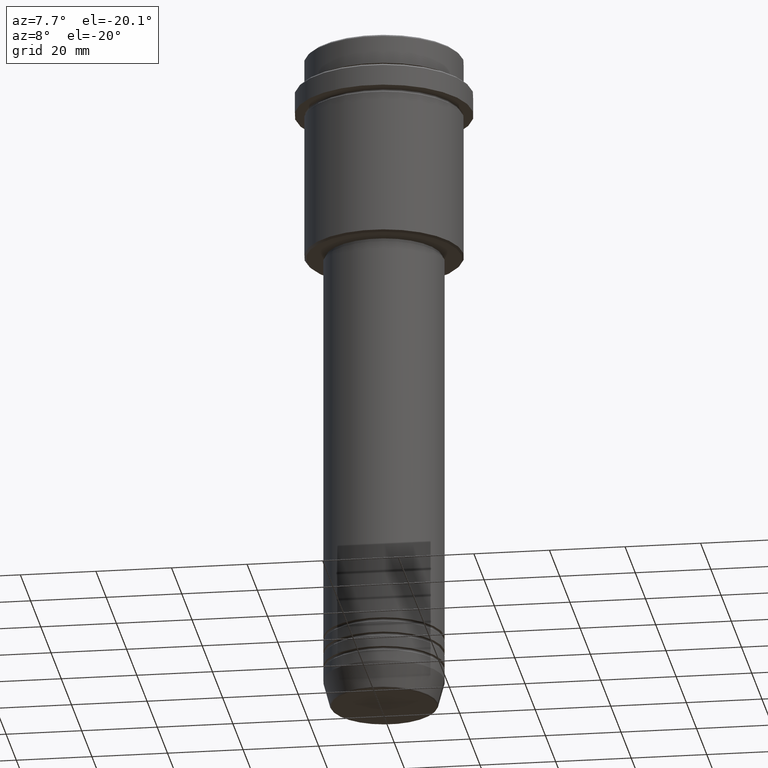
[diagram: clean part render]
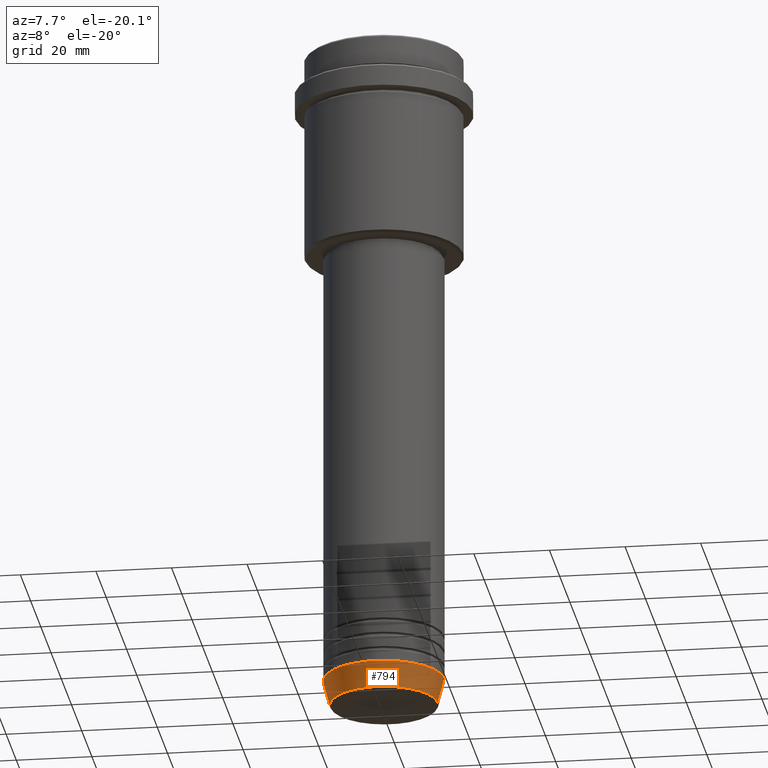
[diagram: same view with one face highlighted and labeled with its STEP entity id]
A machine part, auxiliary view. The second image highlights one B-rep face of the part: STEP entity #794.
In plain terms, the highlighted conical surface has half-angle 15 deg.
Its self-contained STEP definition (entity closure, byte-faithful):
#30 = EDGE_LOOP ( 'NONE', ( #353, #512, #1301, #811 ) ) ;
#59 = EDGE_CURVE ( 'NONE', #643, #421, #756, .T. ) ;
#87 = CARTESIAN_POINT ( 'NONE',  ( 0.000000000000000000, 0.000000000000000000, -179.6294095225512422 ) ) ;
#106 = CARTESIAN_POINT ( 'NONE',  ( -16.00000000000000000, 1.959434878635765131E-15, -173.0000000000000000 ) ) ;
#120 = CIRCLE ( 'NONE', #1187, 16.00000000000000000 ) ;
#166 = DIRECTION ( 'NONE',  ( -0.000000000000000000, -0.000000000000000000, 1.000000000000000000 ) ) ;
#204 = DIRECTION ( 'NONE',  ( -0.000000000000000000, -0.000000000000000000, 1.000000000000000000 ) ) ;
#238 = AXIS2_PLACEMENT_3D ( 'NONE', #282, #166, #606 ) ;
#282 = CARTESIAN_POINT ( 'NONE',  ( 0.000000000000000000, 0.000000000000000000, -173.0000000000000000 ) ) ;
#295 = CARTESIAN_POINT ( 'NONE',  ( 16.00000000000000000, 0.000000000000000000, -173.0000000000000000 ) ) ;
#301 = FACE_OUTER_BOUND ( 'NONE', #30, .T. ) ;
#320 = CARTESIAN_POINT ( 'NONE',  ( 0.000000000000000000, 0.000000000000000000, -173.0000000000000000 ) ) ;
#328 = DIRECTION ( 'NONE',  ( 1.000000000000000000, 0.000000000000000000, 0.000000000000000000 ) ) ;
#345 = DIRECTION ( 'NONE',  ( -0.2588190451025213501, 3.169619151431772337E-17, 0.9659258262890680902 ) ) ;
#353 = ORIENTED_EDGE ( 'NONE', *, *, #474, .F. ) ;
#413 = DIRECTION ( 'NONE',  ( 0.2588190451025213501, 0.000000000000000000, 0.9659258262890680902 ) ) ;
#421 = VERTEX_POINT ( 'NONE', #573 ) ;
#474 = EDGE_CURVE ( 'NONE', #643, #1142, #654, .T. ) ;
#489 = CARTESIAN_POINT ( 'NONE',  ( -14.22365507213718772, 1.850665122131323337E-15, -179.6294095225512422 ) ) ;
#512 = ORIENTED_EDGE ( 'NONE', *, *, #59, .T. ) ;
#539 = DIRECTION ( 'NONE',  ( -0.000000000000000000, -0.000000000000000000, 1.000000000000000000 ) ) ;
#562 = AXIS2_PLACEMENT_3D ( 'NONE', #87, #539, #975 ) ;
#573 = CARTESIAN_POINT ( 'NONE',  ( 14.22365507213718772, 0.000000000000000000, -179.6294095225512422 ) ) ;
#606 = DIRECTION ( 'NONE',  ( 1.000000000000000000, 0.000000000000000000, 0.000000000000000000 ) ) ;
#643 = VERTEX_POINT ( 'NONE', #489 ) ;
#654 = LINE ( 'NONE', #106, #1149 ) ;
#707 = EDGE_CURVE ( 'NONE', #1142, #726, #120, .T. ) ;
#726 = VERTEX_POINT ( 'NONE', #957 ) ;
#753 = CONICAL_SURFACE ( 'NONE', #238, 16.00000000000000000, 0.2617993877991500740 ) ;
#756 = CIRCLE ( 'NONE', #562, 14.22365507213718772 ) ;
#794 = ADVANCED_FACE ( 'NONE', ( #301 ), #753, .T. ) ;
#811 = ORIENTED_EDGE ( 'NONE', *, *, #707, .F. ) ;
#883 = CARTESIAN_POINT ( 'NONE',  ( -16.00000000000000000, 1.959434878635765131E-15, -173.0000000000000000 ) ) ;
#957 = CARTESIAN_POINT ( 'NONE',  ( 16.00000000000000000, 0.000000000000000000, -173.0000000000000000 ) ) ;
#975 = DIRECTION ( 'NONE',  ( 1.000000000000000000, 0.000000000000000000, 0.000000000000000000 ) ) ;
#1058 = VECTOR ( 'NONE', #413, 1000.000000000000000 ) ;
#1066 = EDGE_CURVE ( 'NONE', #421, #726, #1250, .T. ) ;
#1142 = VERTEX_POINT ( 'NONE', #883 ) ;
#1149 = VECTOR ( 'NONE', #345, 1000.000000000000000 ) ;
#1187 = AXIS2_PLACEMENT_3D ( 'NONE', #320, #204, #328 ) ;
#1250 = LINE ( 'NONE', #295, #1058 ) ;
#1301 = ORIENTED_EDGE ( 'NONE', *, *, #1066, .T. ) ;